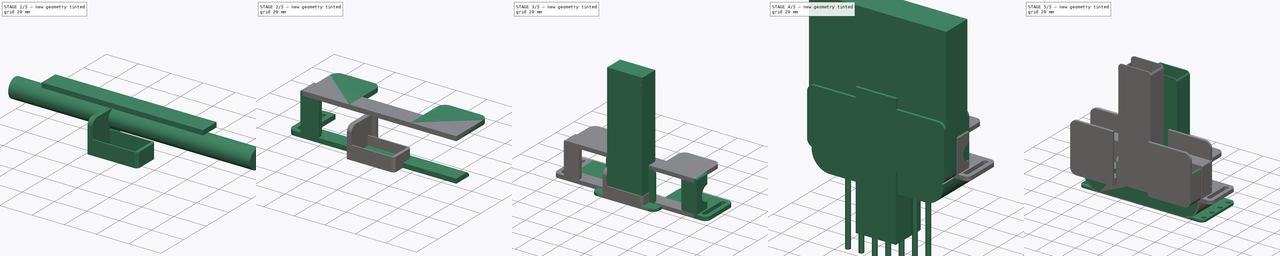
[diagram: build sequence overview — one tinted view per stage of 5, left to right]
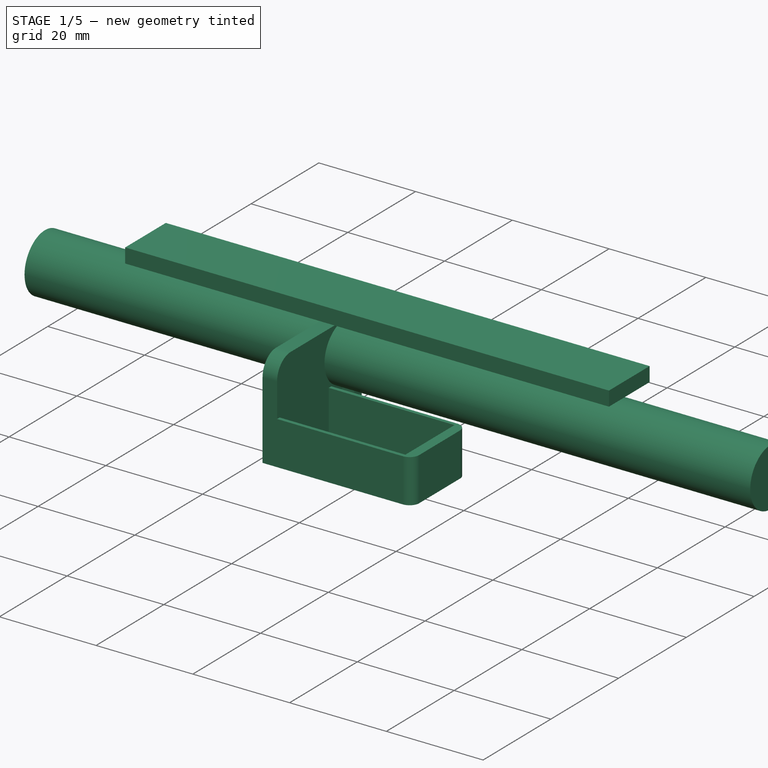
[diagram: stage 1 of 5 — iso view after this stage's code; geometry added in this stage tinted green]
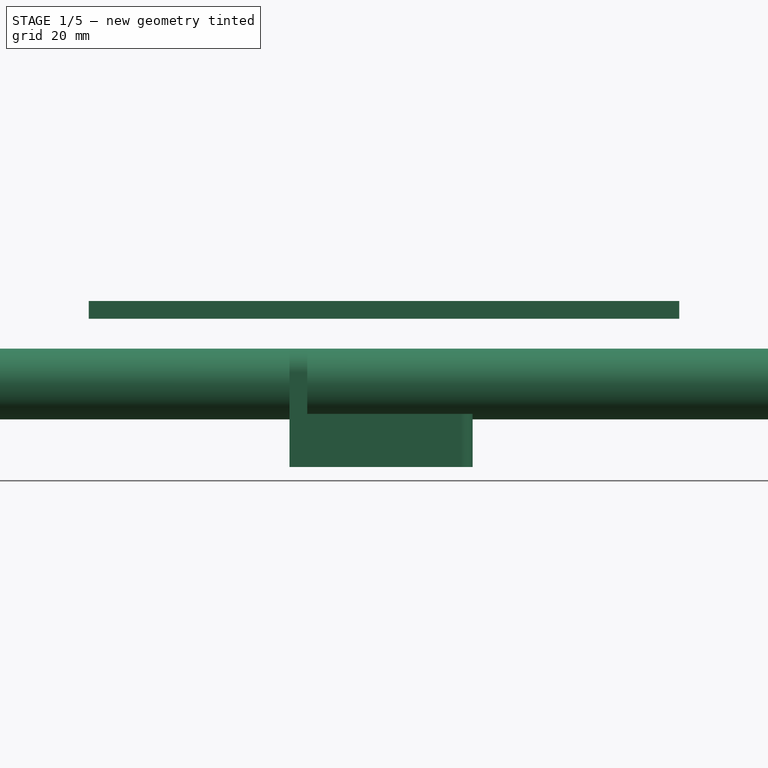
[diagram: stage 1 of 5 — front view after this stage's code; geometry added in this stage tinted green]
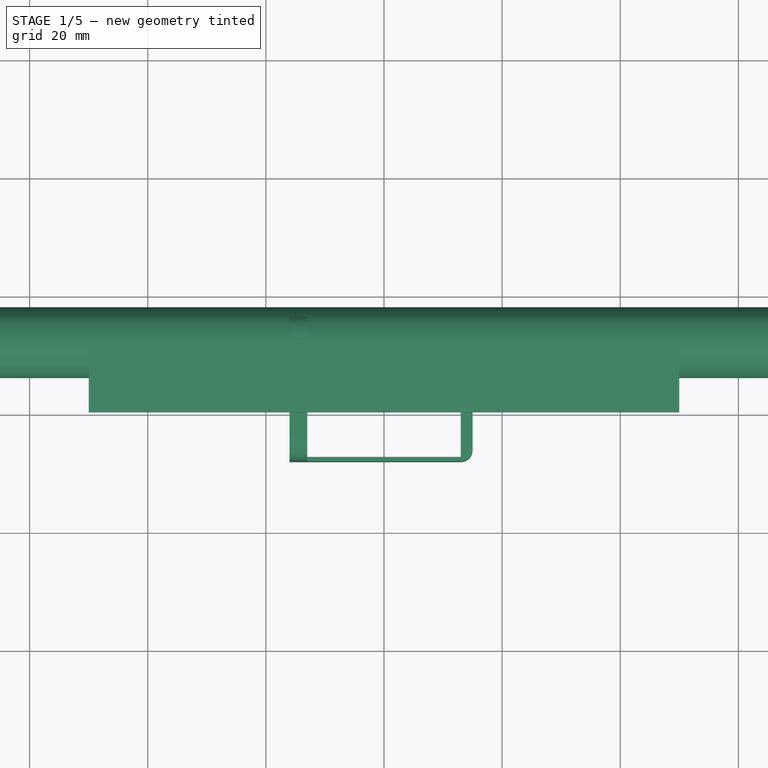
[diagram: stage 1 of 5 — top view after this stage's code; geometry added in this stage tinted green]
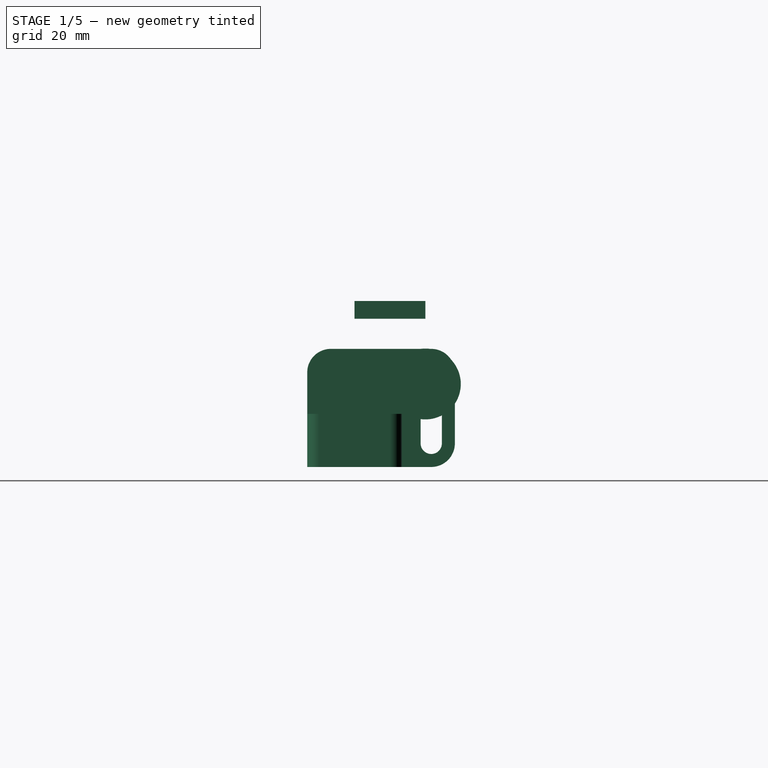
[diagram: stage 1 of 5 — right view after this stage's code; geometry added in this stage tinted green]
FCSTD DOCUMENT  (FreeCAD 0.20R29410 (Git))
Label: wintel_holder
License: All rights reserved
LicenseURL: http://en.wikipedia.org/wiki/All_rights_reserved
objects: Part::Box×25, Part::MultiFuse×16, Part::Fillet×13, Part::Cut×10, Part::Cylinder×9, Part::Mirroring×6, Part::Extrusion×5, Part::FeaturePython×5, Sketcher::SketchObject×4, Part::Compound×3, Part::Chamfer×2, Spreadsheet::Sheet×1, PartDesign::FeatureBase×1, PartDesign::Body×1
note: 95 computed .brp shape members not serialized (recipe doc carries the construction recipe); baked Part::Feature solids carry a one-line shape summary decoded from their .brp

FEATURE [Part::Box] Box013  label="flat holder cube"
  AttacherType = Attacher::AttachEngine3D
  Height = 3
  Length = 100
  Placement = pos=(-50,0,25.1) rot=(0,0,1;0rad)
  Width = 12
  expr: .Placement.Base.x = -Length / 2
  expr: .Placement.Base.z = <<corner cube>>.Height
  expr: Height = <<p>>.thick_wall
  expr: Length = round(<<p>>.wintel_height / 10) * 10
  expr: Width = 10mm + <<p>>.wall
FEATURE [Part::Box] Box014  label="corner cube"
  AttacherType = Attacher::AttachEngine3D
  Height = 25.1
  Length = 10
  Width = 3
  expr: Height = <<p>>.wintel_width - 0.5mm + <<bottom flat holder cube>>.Height
  expr: Length = <<p>>.corner_length
  expr: Width = <<p>>.thick_wall
FEATURE [Part::Box] Box015  label="other corner cube"
  AttacherType = Attacher::AttachEngine3D
  Height = 28.1
  Length = 3
  Placement = pos=(-2,0,0) rot=(0,0,1;0rad)
  Width = 12
  expr: .Placement.Base.x = -<<p>>.wall
  expr: Height = <<corner cube>>.Height + <<p>>.thick_wall
  expr: Length = <<p>>.thick_wall
  expr: Width = <<p>>.wall + 10mm
FEATURE [Part::Box] Box018  label="bottom flat holder cube"
  AttacherType = Attacher::AttachEngine3D
  Height = 3
  Length = 100
  Placement = pos=(-50,0,0) rot=(0,0,1;0rad)
  Width = 12
  expr: .Placement.Base.x = -Length / 2
  expr: Height = <<p>>.thick_wall
  expr: Length = round(<<p>>.wintel_height / 10) * 10
  expr: Width = 10mm + <<p>>.wall
FEATURE [Part::Cylinder] Cylinder008  label="Cylinder"
  Angle = 360
  AttacherType = Attacher::AttachEngine3D
  FirstAngle = 0
  Height = 150
  Placement = pos=(-75,12,14.05) rot=(0,1,0;1.5708rad)
  Radius = 6
  SecondAngle = 0
  expr: .Placement.Base.x = -Height / 2
  expr: .Placement.Base.y = <<other corner cube>>.Width
  expr: .Placement.Base.z = <<other corner cube>>.Height / 2
FEATURE [Part::Box] Box020  label="Cube"
  AttacherType = Attacher::AttachEngine3D
  Height = 9
  Length = 30
  Placement = pos=(-15,-8,0) rot=(0,0,1;0rad)
  Width = 16
  expr: .Placement.Base.x = -Length / 2
  expr: .Placement.Base.y = -Width / 2
FEATURE [Part::Box] Box021  label="Cube001"
  AttacherType = Attacher::AttachEngine3D
  Height = 10
  Length = 26
  Placement = pos=(-13,-7.25,2) rot=(0,0,1;0rad)
  Width = 14.5
  expr: .Placement.Base.x = -Length / 2
  expr: .Placement.Base.y = -Width / 2
FEATURE [Part::Box] Box022  label="Cube002"
  AttacherType = Attacher::AttachEngine3D
  Height = 20
  Length = 3
  Placement = pos=(-16,-8,0) rot=(0,0,1;0rad)
  Width = 25
  expr: .Placement.Base.x = -<<Cube001>>.Length / 2 - Length
  expr: .Placement.Base.y = -<<Cube>>.Width / 2
  expr: Length = <<p>>.thick_wall
FEATURE [Part::Fillet] Fillet011
  Base = -> Box022
  Edges = 3 edges r=4: [Edge10,Edge11,Edge12]
FEATURE [Part::Box] Box023  label="m3 hole cube001"
  AttacherType = Attacher::AttachEngine3D
  Height = 10
  Length = 3.6
  Placement = pos=(-1.8,-6,0) rot=(0,0,1;0rad)
  Width = 12
  expr: .Placement.Base.x = -Length / 2
  expr: .Placement.Base.y = -Width / 2
  expr: Length = 2 * <<p>>.m3_r
  expr: Width = abs(<<m3 hole001>>.Placement.Base.y) * 2
FEATURE [Part::Cylinder] Cylinder009  label="m3 hole001"
  Angle = 360
  AttacherType = Attacher::AttachEngine3D
  FirstAngle = 0
  Height = 10
  Placement = pos=(0,-6,0) rot=(0,0,1;0rad)
  Radius = 1.8
  SecondAngle = 0
  expr: Radius = <<p>>.m3_r
FEATURE [Part::Mirroring] Part__Mirroring005  label="m3 hole (Mirror #3)001"
  Base = (0,0,0)
  Normal = (0,1,0)
  Source = -> Cylinder009
FEATURE [Part::MultiFuse] Fusion015  label="widen bolt hole fusion001"
  Placement = pos=(-7,13,10) rot=(0.57735,-0.57735,-0.57735;2.0944rad)
  Shapes = -> [Box023,Part__Mirroring005,Cylinder009]
FEATURE [Part::Fillet] Fillet012
  Base = -> Box020
  Edges = 2 edges r=2: [Edge5,Edge7]
FEATURE [Part::Cut] Cut007
  Base = -> Fillet012
  Tool = -> Box021
FEATURE [Part::MultiFuse] Fusion016
  Shapes = -> [Cut007,Fillet011]
FEATURE [Part::Cut] Cut008  label="usb side holder cut"
  Base = -> Fusion016
  Tool = -> Fusion015
FEATURE [Part::Box] Box024  label="Cube003"
  AttacherType = Attacher::AttachEngine3D
  Height = 10
  Length = 26
  Placement = pos=(-13,-7.25,0) rot=(0,0,1;0rad)
  Width = 14.5
  expr: .Placement.Base.x = -Length / 2
  expr: .Placement.Base.y = -Width / 2
FEATURE [Part::Cut] Cut009  label="usb side holder open cut"
  Base = -> Cut008
  Tool = -> Box024
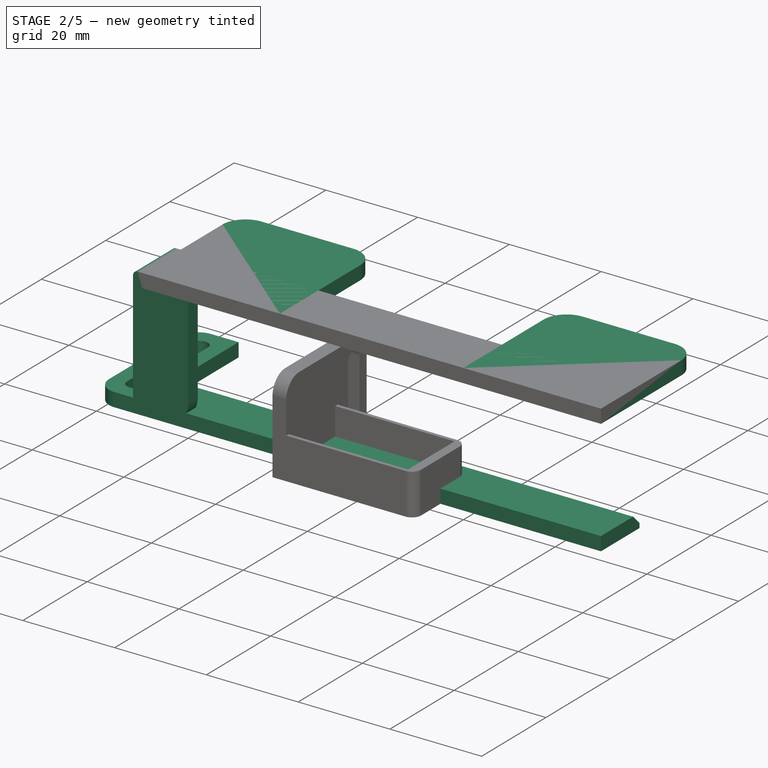
[diagram: stage 2 of 5 — iso view after this stage's code; geometry added in this stage tinted green]
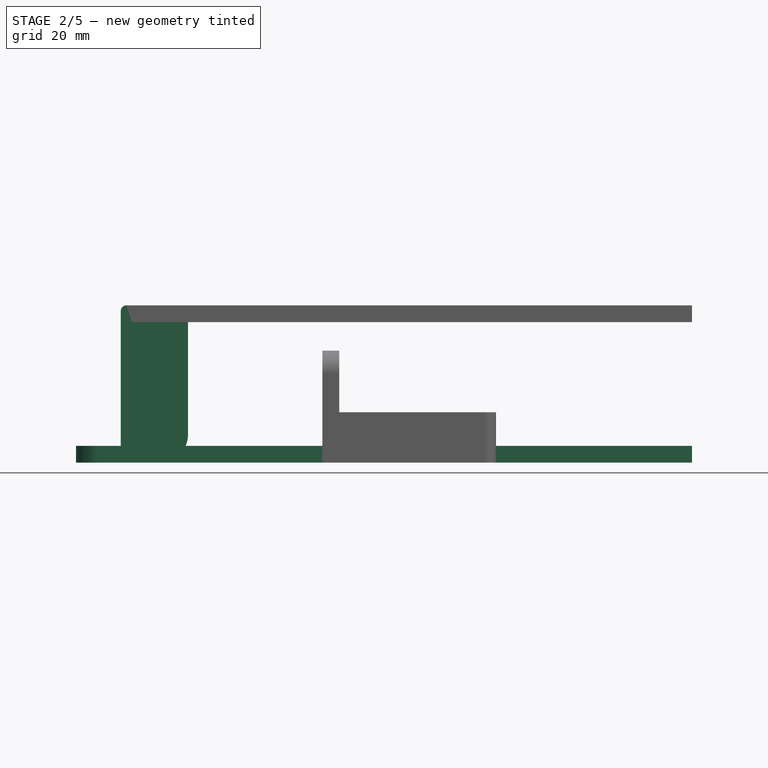
[diagram: stage 2 of 5 — front view after this stage's code; geometry added in this stage tinted green]
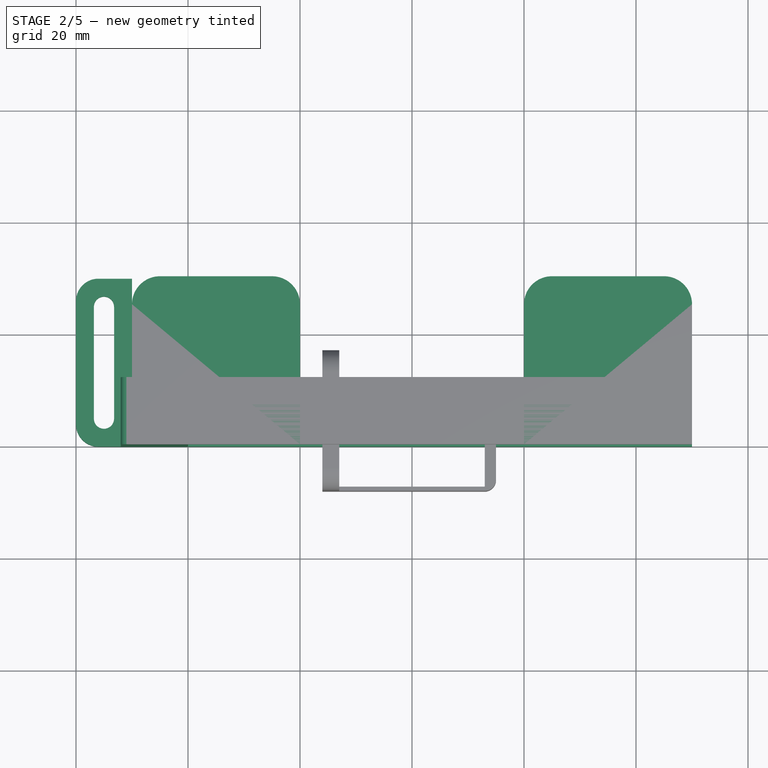
[diagram: stage 2 of 5 — top view after this stage's code; geometry added in this stage tinted green]
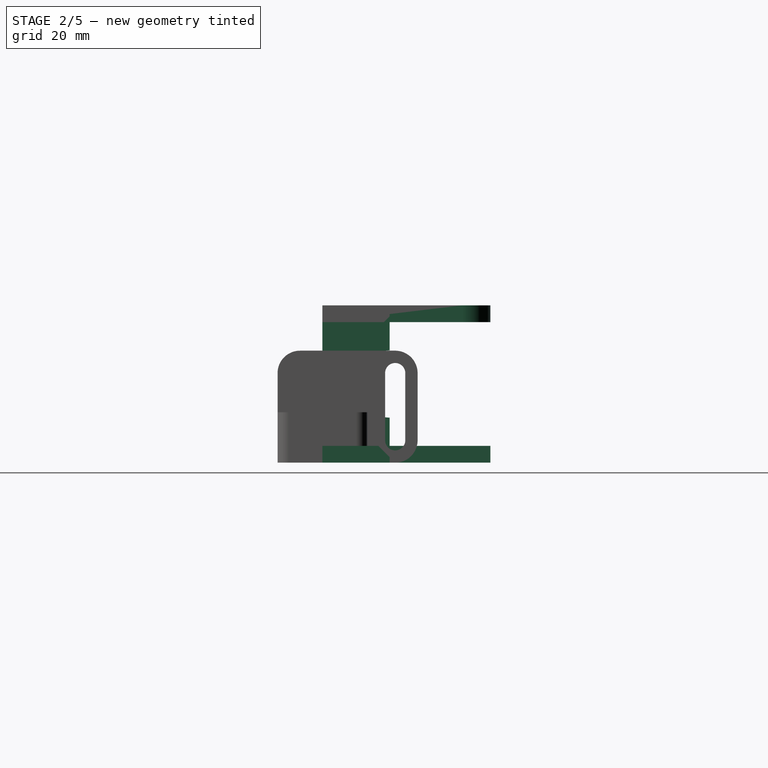
[diagram: stage 2 of 5 — right view after this stage's code; geometry added in this stage tinted green]
FEATURE [Part::Box] Box016  label="cornet attachment cube"
  AttacherType = Attacher::AttachEngine3D
  Height = 3
  Length = 10
  Placement = pos=(-10,0,0) rot=(0,0,1;0rad)
  Width = 30
  expr: .Placement.Base.x = -Length
  expr: Height = <<p>>.thick_wall
  expr: Width = <<bottom flat cube>>.Width
FEATURE [Part::Fillet] Fillet006  label="cornet attachment cube fillet"
  Base = -> Box016
  Edges = 2 edges r=4: [Edge1,Edge3]
FEATURE [Part::Fillet] Fillet007  label="corner cube fillet"
  Base = -> Box014
  Edges = 1 edges r=5: [Edge8]
FEATURE [Part::Cylinder] Cylinder007  label="m3 hole"
  Angle = 360
  AttacherType = Attacher::AttachEngine3D
  FirstAngle = 0
  Height = 10
  Placement = pos=(0,-10,0) rot=(0,0,1;0rad)
  Radius = 1.8
  SecondAngle = 0
  expr: Radius = <<p>>.m3_r
FEATURE [Part::Box] Box017  label="m3 hole cube"
  AttacherType = Attacher::AttachEngine3D
  Height = 10
  Length = 3.6
  Placement = pos=(-1.8,-10,0) rot=(0,0,1;0rad)
  Width = 20
  expr: .Placement.Base.x = -Length / 2
  expr: .Placement.Base.y = -Width / 2
  expr: Length = 2 * <<p>>.m3_r
  expr: Width = abs(<<m3 hole>>.Placement.Base.y) * 2
FEATURE [Part::Mirroring] Part__Mirroring002  label="m3 hole (Mirror #3)"
  Base = (0,0,0)
  Normal = (0,1,0)
  Source = -> Cylinder007
FEATURE [Part::MultiFuse] Fusion010  label="widen bolt hole fusion"
  Placement = pos=(-5,15,0) rot=(0,0,1;0rad)
  Shapes = -> [Box017,Part__Mirroring002,Cylinder007]
  expr: .Placement.Base.x = -5mm
  expr: .Placement.Base.y = <<cornet attachment cube>>.Width / 2
FEATURE [Part::Chamfer] Chamfer  label="bottom flat holder chamfer"
  Base = -> Box018
  Edges = 1 edges r=2: [Edge12]
FEATURE [Part::Chamfer] Chamfer001  label="flat holder cube chamfer"
  Base = -> Box013
  Edges = 1 edges r=1: [Edge11]
FEATURE [Part::Fillet] Fillet008  label="other corner cube fillet"
  Base = -> Box015
  Edges = 1 edges r=1: [Edge2]
FEATURE [Part::MultiFuse] Fusion011  label="cornet set fusion"
  Shapes = -> [Fillet006,Fillet007,Fillet008]
FEATURE [Part::Box] Box019  label="bottom flat cube"
  AttacherType = Attacher::AttachEngine3D
  Height = 3
  Length = 30
  Placement = pos=(-50,0,0) rot=(0,0,1;0rad)
  Width = 30
  expr: .Placement.Base.x = -<<flat holder cube>>.Length / 2
  expr: Height = <<p>>.thick_wall
FEATURE [Part::Fillet] Fillet009  label="bottom flat fillet"
  Base = -> Box019
  Edges = 1 edges r=5: [Edge7]
FEATURE [Part::Mirroring] Part__Mirroring003  label="bottom flat fillet (Mirror #4)"
  Base = (0,0,0)
  Normal = (1,0,0)
  Source = -> Fillet009
FEATURE [Part::MultiFuse] Fusion013  label="bottom flat fusion"
  Shapes = -> [Part__Mirroring003,Fillet009]
FEATURE [Part::Mirroring] Part__Mirroring004  label="bottom flat fusion (Mirror #5)"
  Base = (0,0,14.05)
  Normal = (0,0,1)
  Source = -> Fusion013
  expr: .Base.z = (<<p>>.wintel_width + <<p>>.thick_wall - 0.5mm + <<p>>.thick_wall) / 2
FEATURE [Part::Fillet] Fillet010  label="bottom flat fusion (Mirror #5) fillet"
  Base = -> Part__Mirroring004
  Edges = 2 edges r=5: [Edge15,Edge30]
FEATURE [Part::MultiFuse] Fusion014  label="extract fusion"
  Shapes = -> [Fusion010,Cylinder008]
FEATURE [Part::Cut] Cut006  label="cornet set cut"
  Base = -> Fusion011
  Placement = pos=(-50,0,0) rot=(0,0,1;0rad)
  Tool = -> Fusion014
  expr: .Placement.Base.x = -<<flat holder cube>>.Length / 2
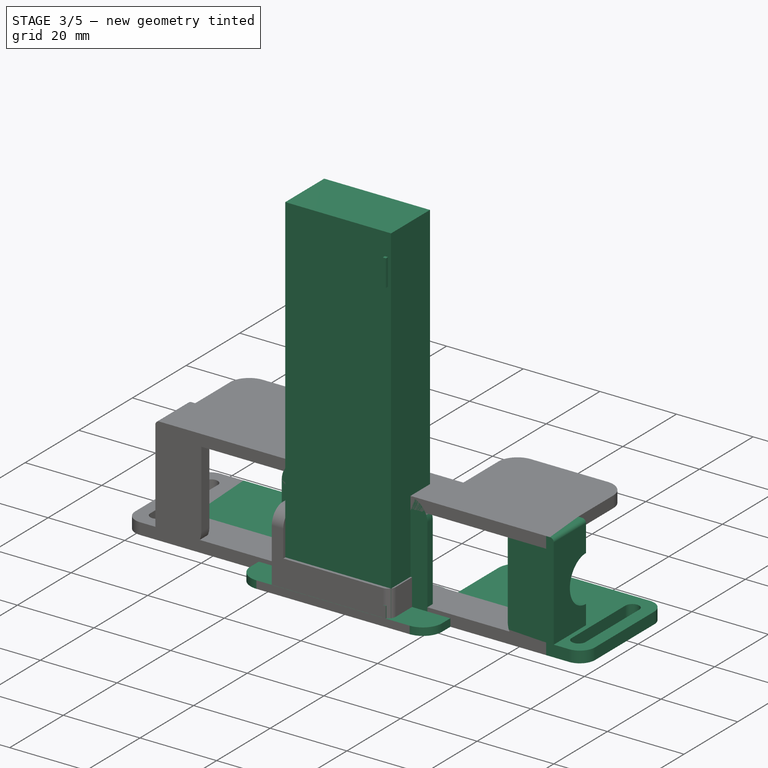
[diagram: stage 3 of 5 — iso view after this stage's code; geometry added in this stage tinted green]
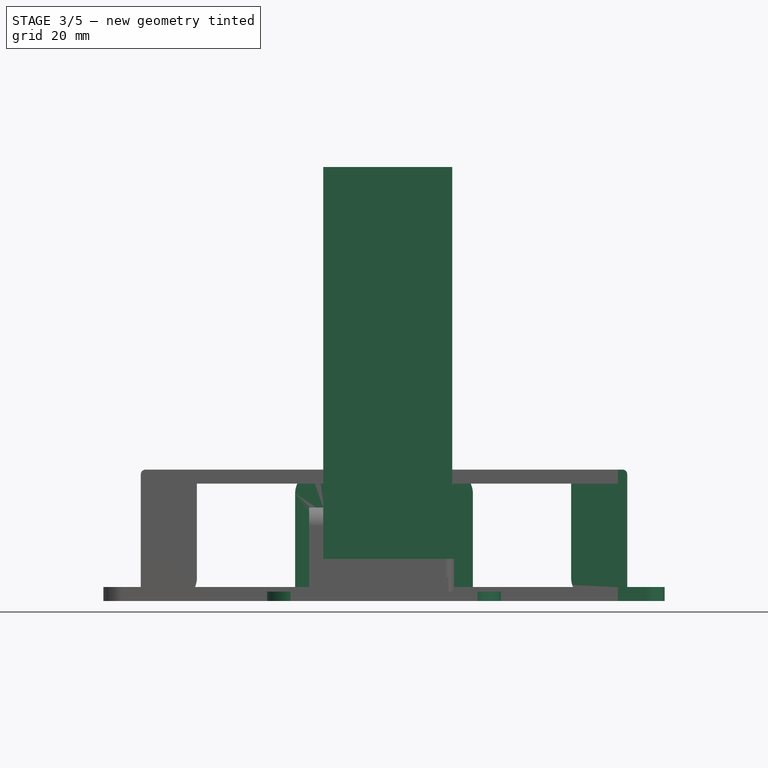
[diagram: stage 3 of 5 — front view after this stage's code; geometry added in this stage tinted green]
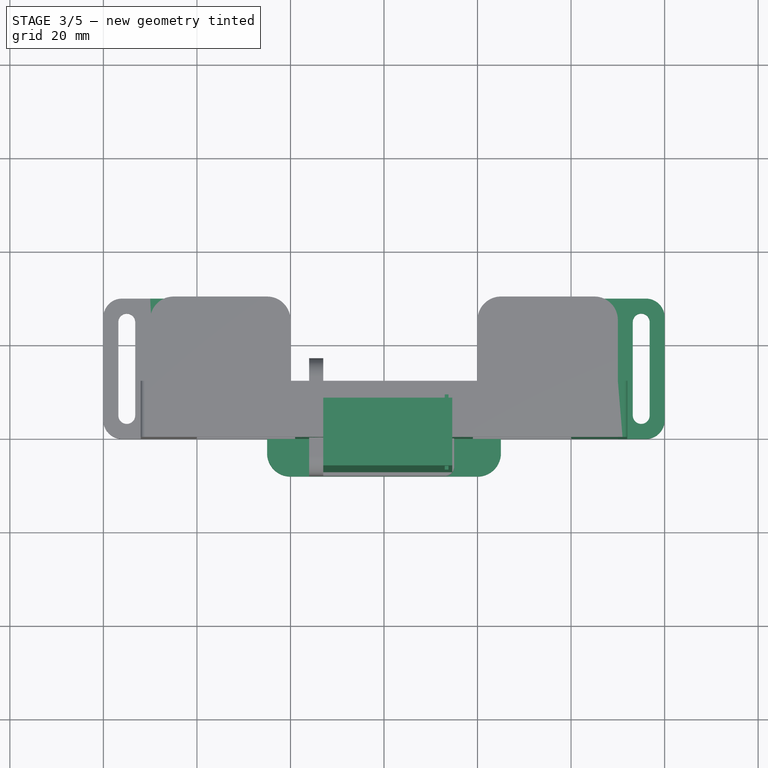
[diagram: stage 3 of 5 — top view after this stage's code; geometry added in this stage tinted green]
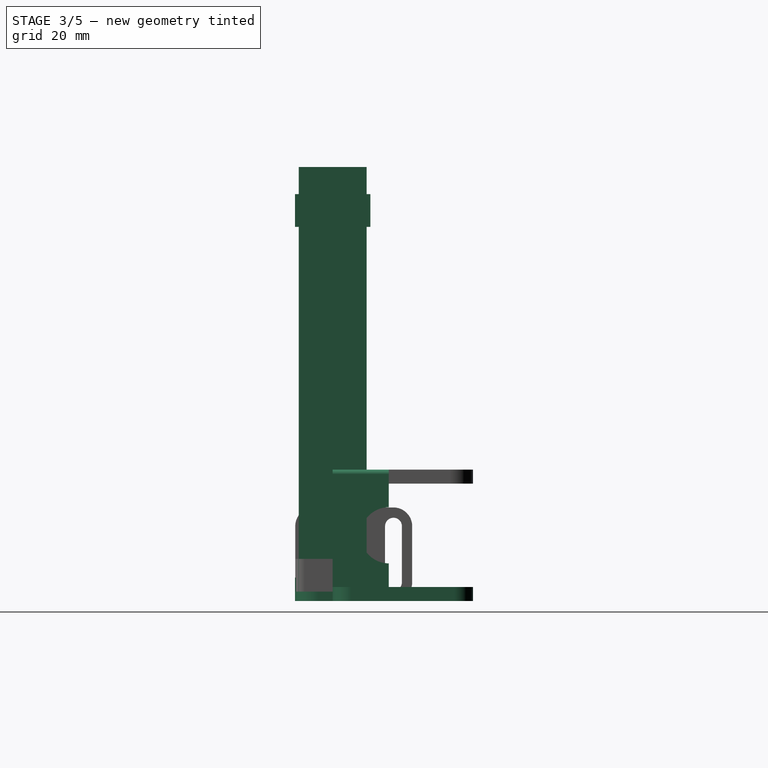
[diagram: stage 3 of 5 — right view after this stage's code; geometry added in this stage tinted green]
FEATURE [Part::Box] Box  label="usb outer cube"
  AttacherType = Attacher::AttachEngine3D
  Height = 92
  Length = 27.6
  Placement = pos=(-13.8,-8.05,0) rot=(0,0,1;0rad)
  Width = 16.1
  expr: .Placement.Base.x = -Length / 2
  expr: .Placement.Base.y = -Width / 2
  expr: Length = 26mm + 2 * <<bottom sketch>>.Constraints.wall
  expr: Width = 14.5mm + 2 * <<bottom sketch>>.Constraints.wall
FEATURE [Part::Box] Box002  label="usb inner cube"
  AttacherType = Attacher::AttachEngine3D
  Height = 92
  Length = 27.6
  Placement = pos=(-13,-7.25,0.8) rot=(0,0,1;0rad)
  Width = 14.5
  expr: .Placement.Base.x = -Length / 2 + <<bottom sketch>>.Constraints.wall
  expr: .Placement.Base.y = -Width / 2
  expr: .Placement.Base.z = <<bottom sketch>>.Constraints.wall
  expr: Height = <<usb outer cube>>.Height
  expr: Length = <<usb outer cube>>.Length
  expr: Width = <<usb outer cube>>.Width - 2 * <<bottom sketch>>.Constraints.wall
FEATURE [Part::Box] Box003  label="usb bottom wall cube"
  AttacherType = Attacher::AttachEngine3D
  Height = 5
  Length = 0.8
  Placement = pos=(13,-8.05,0) rot=(0,0,1;0rad)
  Width = 16.1
  expr: .Placement.Base.x = <<usb outer cube>>.Length / 2 - Length
  expr: .Placement.Base.y = -Width / 2
  expr: Length = <<bottom sketch>>.Constraints.wall
  expr: Width = <<usb outer cube>>.Width
FEATURE [Part::Box] Box004  label="usb top wall cube"
  AttacherType = Attacher::AttachEngine3D
  Height = 7
  Length = 0.8
  Placement = pos=(13,-8.05,80) rot=(0,0,1;0rad)
  Width = 16.1
  expr: .Placement.Base.x = <<usb outer cube>>.Length / 2 - Length
  expr: .Placement.Base.y = -Width / 2
  expr: Length = <<bottom sketch>>.Constraints.wall
  expr: Width = <<usb outer cube>>.Width
FEATURE [Part::Box] Box010  label="usb holder attachment cube"
  AttacherType = Attacher::AttachEngine3D
  Height = 2
  Length = 50
  Placement = pos=(-25,-8.05,0) rot=(0,0,1;0rad)
  Width = 16.1
  expr: .Placement.Base.x = -Length / 2
  expr: .Placement.Base.y = -Width / 2
  expr: Height = <<p>>.wall
  expr: Width = <<usb outer cube>>.Width
FEATURE [Part::Fillet] Fillet003  label="usb holder attachment cube fillet"
  Base = -> Box010
  Edges = 4 edges r=5: [Edge1,Edge3,Edge5,Edge7]
FEATURE [Part::Box] Box011  label="vertical camera holder wall cube"
  AttacherType = Attacher::AttachEngine3D
  Height = 28
  Length = 38
  Placement = pos=(-19,0,0) rot=(0,0,1;0rad)
  Width = 2
  expr: .Placement.Base.x = -Length / 2
  expr: Width = <<p>>.wall
FEATURE [Part::Fillet] Fillet004  label="vertical camera holder wall cube fillet"
  Base = -> Box011
  Edges = 2 edges r=5: [Edge2,Edge6]
FEATURE [Part::Box] Box012  label="horizontal camera holder wall cube"
  AttacherType = Attacher::AttachEngine3D
  Height = 2
  Length = 38
  Placement = pos=(-19,2,0) rot=(0,0,1;0rad)
  Width = 10
  expr: .Placement.Base.x = -Length / 2
  expr: .Placement.Base.y = <<p>>.wall
  expr: Height = <<p>>.wall
  expr: Length = <<vertical camera holder wall cube>>.Length
FEATURE [Part::Fillet] Fillet005  label="horizontal camera holder wall cube fillet"
  Base = -> Box012
  Edges = 2 edges r=5: [Edge3,Edge7]
FEATURE [Part::MultiFuse] Fusion007  label="camera holder fusion"
  Shapes = -> [Fillet004,Fillet005]
FEATURE [Part::Cylinder] Cylinder005  label="bolt hole004"
  Angle = 360
  AttacherType = Attacher::AttachEngine3D
  FirstAngle = 0
  Height = 10
  Radius = 1.8
  SecondAngle = 0
FEATURE [Part::FeaturePython] Array003  label="bolt hole array003"  # Draft array (typed FeaturePython)
  AlwaysSyncPlacement = false
  Angle = 360
  ArrayType = 0
  Axis = (0,0,1)
  Base = -> Cylinder005
  Center = (0,0,0)
  Count = 3
  ExpandArray = false
  Fuse = false
  IntervalAxis = (0,0,0)
  IntervalX = (10,0,0)
  IntervalY = (0,100,0)
  IntervalZ = (0,0,100)
  NumberCircles = 3
  NumberPolar = 5
  NumberX = 3
  NumberY = 1
  NumberZ = 1
  Placement = pos=(-10,7,0) rot=(0,0,1;0rad)
  PlacementList = 3 placements: arithmetic series from (0,0,0) step (10,0,0) to (20,0,0)
  RadialDistance = 50
  ScaleList = (3) [(1,1,1),(1,1,1),(1,1,1)]
  Symmetry = 1
  TangentialDistance = 25
  expr: .Placement.Base.x = -.IntervalX.x * (NumberX - 1) / 2
  expr: .Placement.Base.y = <<p>>.wall + <<horizontal camera holder wall cube>>.Width / 2
FEATURE [Part::Cylinder] Cylinder006  label="bolt hole005"
  Angle = 360
  AttacherType = Attacher::AttachEngine3D
  FirstAngle = 0
  Height = 10
  Placement = pos=(0,0,0) rot=(-1,0,0;1.5708rad)
  Radius = 2
  SecondAngle = 0
FEATURE [Part::FeaturePython] Array004  # Draft array (typed FeaturePython)
  AlwaysSyncPlacement = false
  Angle = 360
  ArrayType = 0
  Axis = (0,0,1)
  Base = -> Cylinder006
  Center = (0,0,0)
  Count = 2
  ExpandArray = false
  Fuse = false
  IntervalAxis = (0,0,0)
  IntervalX = (24,0,0)
  IntervalY = (0,100,0)
  IntervalZ = (0,0,100)
  NumberCircles = 3
  NumberPolar = 5
  NumberX = 2
  NumberY = 1
  NumberZ = 1
  Placement = pos=(-12,0,17) rot=(0,0,1;0rad)
  PlacementList = 2 placements: [(0,0,0),(24,0,0)]
  RadialDistance = 50
  ScaleList = (2) [(1,1,1),(1,1,1)]
  Symmetry = 1
  TangentialDistance = 25
  expr: .Placement.Base.x = -.IntervalX.x * (NumberX - 1) / 2
FEATURE [Part::MultiFuse] Fusion008  label="camera holder extract fusion"
  Shapes = -> [Array003,Array004]
FEATURE [Part::Cut] Cut005  label="camera holder cut"
  Base = -> Fusion007
  Tool = -> Fusion008
FEATURE [Part::Mirroring] Part__Mirroring001  label="cornet set cut (Mirror #2)"
  Base = (0,0,0)
  Normal = (1,0,0)
  Source = -> Cut006
FEATURE [Part::MultiFuse] Fusion012  label="flat holder fusion"
  Shapes = -> [Part__Mirroring001,Cut006,Chamfer001,Chamfer,Fusion013,Fillet010]
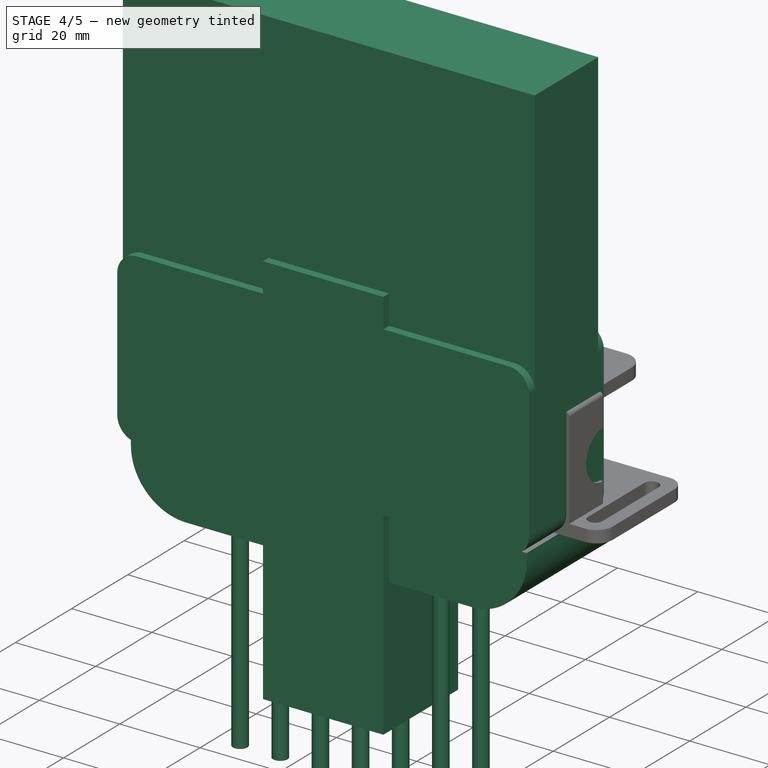
[diagram: stage 4 of 5 — iso view after this stage's code; geometry added in this stage tinted green]
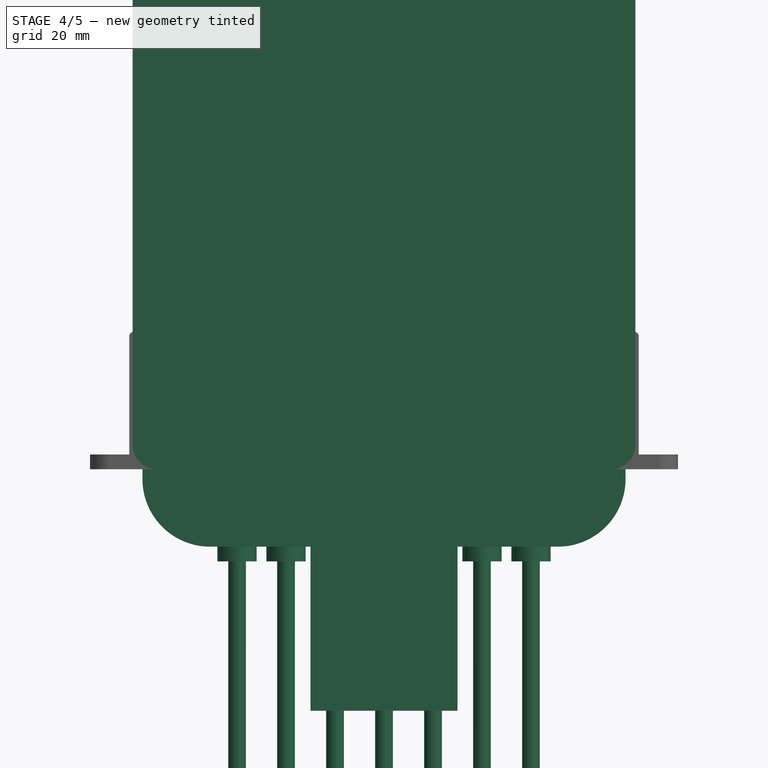
[diagram: stage 4 of 5 — front view after this stage's code; geometry added in this stage tinted green]
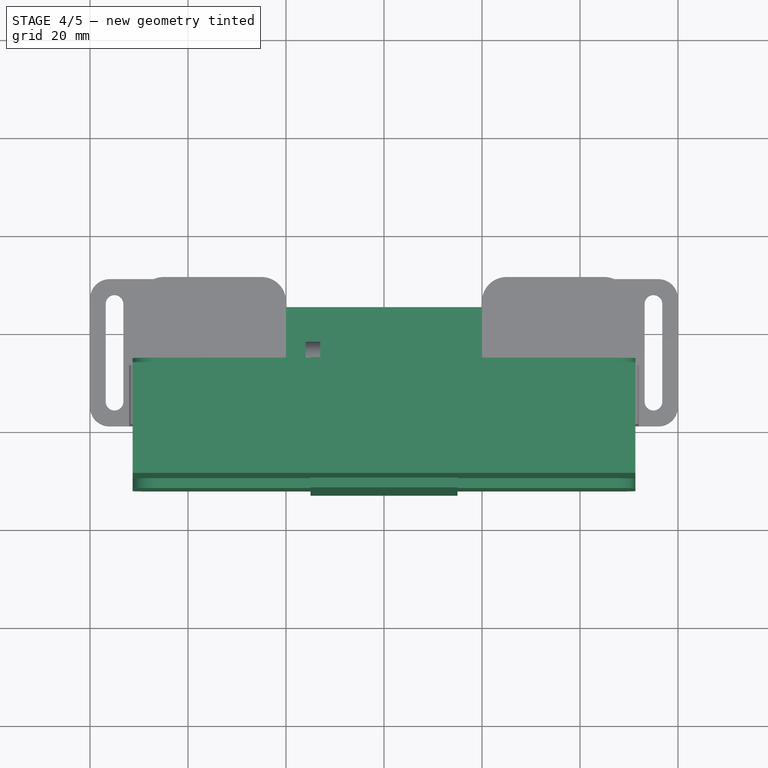
[diagram: stage 4 of 5 — top view after this stage's code; geometry added in this stage tinted green]
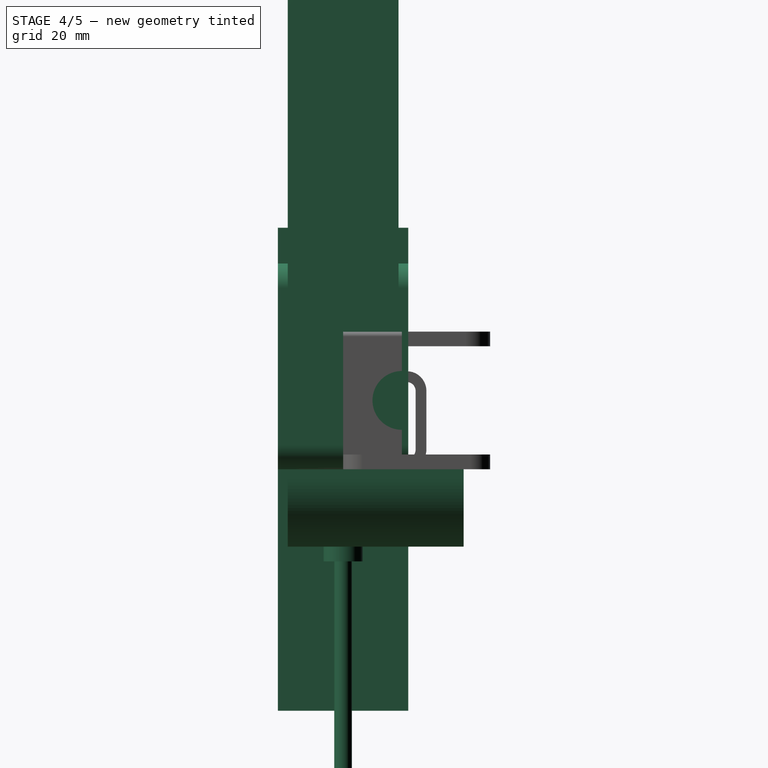
[diagram: stage 4 of 5 — right view after this stage's code; geometry added in this stage tinted green]
FEATURE [Sketcher::SketchObject] Sketch  label="bottom sketch"
  FullyConstrained = true
  Placement = pos=(0,0,0) rot=(1,0,0;1.5708rad)
  sketch-geometry (12):
    g0: LineSegment StartX=-35.5 StartY=-15.8 StartZ=0 EndX=35.5 EndY=-15.8 EndZ=0
    g1: LineSegment StartX=-35.5 StartY=-15 StartZ=0 EndX=35.5 EndY=-15 EndZ=0
    g2: ArcOfCircle CenterX=-35.5 CenterY=-2 CenterZ=0 NormalX=0 NormalY=0 NormalZ=1 AngleXU=0 Radius=13 StartAngle=3.14159 EndAngle=4.71239
    g3: ArcOfCircle CenterX=-35.5 CenterY=-2 CenterZ=0 NormalX=0 NormalY=0 NormalZ=1 AngleXU=0 Radius=13.8 StartAngle=3.14159 EndAngle=4.71239
    g4: ArcOfCircle CenterX=35.5 CenterY=-2 CenterZ=0 NormalX=0 NormalY=0 NormalZ=1 AngleXU=0 Radius=13 StartAngle=4.71239 EndAngle=6.28319
    g5: ArcOfCircle CenterX=35.5 CenterY=-2 CenterZ=0 NormalX=0 NormalY=0 NormalZ=1 AngleXU=0 Radius=13.8 StartAngle=4.71239 EndAngle=6.28319
    g6: LineSegment StartX=-48.5 StartY=0 StartZ=0 EndX=-48.5 EndY=-2 EndZ=0
    g7: LineSegment StartX=48.5 StartY=-2 StartZ=0 EndX=48.5 EndY=0 EndZ=0
    g8: LineSegment StartX=49.3 StartY=-2 StartZ=0 EndX=49.3 EndY=0 EndZ=0
    g9: LineSegment StartX=-49.3 StartY=-2 StartZ=0 EndX=-49.3 EndY=0 EndZ=0
    g10: LineSegment StartX=-49.3 StartY=0 StartZ=0 EndX=-48.5 EndY=0 EndZ=0
    g11: LineSegment StartX=48.5 StartY=0 StartZ=0 EndX=49.3 EndY=0 EndZ=0
  constraints (35):
    c: Coincident(g3,g2)
    c: Coincident(g5,g4)
    c: DistanceX(g1,g1) = 71  'internal_bottom_length'
    c: DistanceX(g3,g2) = 0.8  'wall'
    c: DistanceX(g0,g0) = 71  'bottom_border_size'
    c: Radius(g3) = 13.8  'border_radius'
    c: DistanceY(g0,g2) = 13.8  'border_height'
    c: DistanceX(g2,g4) = 97
    c: Coincident(g2,g1)
    c: Tangent(g1,g4) = -1.5708
    c: Tangent(g0,g5) = -1.5708
    c: Symmetric(g1,g1,g-2)
    c: Symmetric(g0,g0,g-2)
    c: Tangent(g3,g0) = -1.5708
    c: DistanceX(g3,g5) = 98.6  'top_length'
    c: PointOnObject(g6,g-1)
    c: Vertical(g6)
    c: PointOnObject(g7,g-1)
    c: PointOnObject(g8,g-1)
    c: Vertical(g8)
    c: PointOnObject(g9,g-1)
    c: Coincident(g10,g9)
    c: Coincident(g10,g6)
    c: Vertical(g9)
    c: Coincident(g4,g7)
    c: Vertical(g7)
    c: Coincident(g11,g7)
    c: Coincident(g11,g8)
    c: Tangent(g9,g3) = 1.5708
    c: Tangent(g8,g5) = -1.5708
    c: Equal(g9,g8)
    c: Equal(g7,g6)
    c: Tangent(g2,g6) = -1.5708
    c: DistanceY(g9,g9) = 2  'top_vertical_line'
    c: DistanceY(g0,g-1) = 15.8  'below_center'
FEATURE [Part::Extrusion] Extrude  label="bottom extrude"
  Base = -> Sketch
  Dir = (0,-1,2e-16)
  DirMode = 2
  FaceMakerClass = Part::FaceMakerBullseye
  LengthFwd = 24.6
  LengthRev = 0
  Reversed = true
  Solid = true
  Symmetric = false
  expr: LengthFwd = 23mm + 2 * <<bottom sketch>>.Constraints.wall
FEATURE [Part::Fillet] Fillet001  label="usb outer cube fillet"
  Base = -> Box
  Edges = 2 edges r=3: [Edge2,Edge6]
FEATURE [Part::Cut] Cut002  label="usb holder cut"
  Base = -> Fillet001
  Tool = -> Box002
FEATURE [Part::MultiFuse] Fusion001  label="usb holder fusion"
  Shapes = -> [Cut002,Box003,Box004]
FEATURE [Part::Compound] Compound  label="usb holder compound"
  Links = -> [Fusion001]
  Placement = pos=(0,0,1.2) rot=(0,0,1;3.14159rad)
  expr: .Placement.Base.z = <<p>>.wall - <<usb bottom wall cube>>.Length
FEATURE [Sketcher::SketchObject] Sketch003  label="bottom under sketch"
  FullyConstrained = false
  Placement = pos=(0,0,0) rot=(1,0,0;1.5708rad)
  sketch-geometry (6):
    g0: LineSegment StartX=-35.5 StartY=-15.8 StartZ=0 EndX=35.5 EndY=-15.8 EndZ=0
    g1: ArcOfCircle CenterX=-35.5 CenterY=-2 CenterZ=0 NormalX=0 NormalY=0 NormalZ=1 AngleXU=0 Radius=13.8 StartAngle=3.14159 EndAngle=4.71239
    g2: ArcOfCircle CenterX=35.5 CenterY=-2 CenterZ=0 NormalX=0 NormalY=0 NormalZ=1 AngleXU=0 Radius=13.8 StartAngle=4.71239 EndAngle=6.28319
    g3: LineSegment StartX=49.3 StartY=-2 StartZ=0 EndX=49.3 EndY=0 EndZ=0
    g4: LineSegment StartX=-49.3 StartY=-2 StartZ=0 EndX=-49.3 EndY=0 EndZ=0
    g5: LineSegment StartX=-49.3 StartY=0 StartZ=0 EndX=49.3 EndY=0 EndZ=0
  constraints (17):
    c: DistanceX(g0,g0) = 71  'bottom_border_size'
    c: Radius(g1) = 13.8  'border_radius'
    c: Tangent(g0,g2) = -1.5708
    c: Symmetric(g0,g0,g-2)
    c: Tangent(g1,g0) = -1.5708
    c: DistanceX(g1,g2) = 98.6  'top_length'
    c: PointOnObject(g3,g-1)
    c: Vertical(g3)
    c: PointOnObject(g4,g-1)
    c: Vertical(g4)
    c: Tangent(g4,g1) = 1.5708
    c: Tangent(g3,g2) = -1.5708
    c: Equal(g4,g3)
    c: DistanceY(g4,g4) = 2  'top_vertical_line'
    c: DistanceY(g0,g-1) = 15.8  'below_center'
    c: Coincident(g5,g4)
    c: Coincident(g5,g3)
FEATURE [Part::Extrusion] Extrude004  label="bottom pad"
  Base = -> Sketch003
  Dir = (0,-1,2e-16)
  DirMode = 2
  FaceMakerClass = Part::FaceMakerBullseye
  LengthFwd = 22.6
  LengthRev = 0
  Solid = true
  Symmetric = true
  expr: LengthFwd = <<p>>.wintel_width
FEATURE [Part::Box] Box007  label="wintel holder outer cube"
  AttacherType = Attacher::AttachEngine3D
  Height = 42
  Length = 102.6
  Placement = pos=(-51.3,-13.3,0) rot=(0,0,1;0rad)
  Width = 26.6
  expr: .Placement.Base.x = -Length / 2
  expr: .Placement.Base.y = -Width / 2
  expr: Height = <<p>>.wintel_holder_height + <<p>>.wall
  expr: Length = <<p>>.wintel_length + 2 * <<p>>.wall
  expr: Width = <<p>>.wintel_width + 2 * <<p>>.wall
FEATURE [Part::Box] Box008  label="wintel box extract"
  AttacherType = Attacher::AttachEngine3D
  Height = 98.6
  Length = 102.6
  Placement = pos=(-51.3,-11.3,5) rot=(0,0,1;0rad)
  Width = 22.6
  expr: .Placement.Base.x = -Length / 2
  expr: .Placement.Base.y = -Width / 2
  expr: .Placement.Base.z = <<p>>.side_extract_offset_height
  expr: Height = <<p>>.wintel_height
  expr: Length = <<p>>.wintel_length + 2 * <<p>>.wall
  expr: Width = <<p>>.wintel_width
FEATURE [Part::Fillet] Fillet002  label="wintel holder outer cube fillet"
  Base = -> Box007
  Edges = 4 edges r=5: [Edge2,Edge4,Edge6,Edge8]
FEATURE [Part::Box] Box009  label="wintel split cube"
  AttacherType = Attacher::AttachEngine3D
  Height = 98.6
  Length = 30
  Placement = pos=(-15,-13.3,-49.3) rot=(0,0,1;0rad)
  Width = 26.6
  expr: .Placement.Base.x = -Length / 2
  expr: .Placement.Base.y = -Width / 2
  expr: .Placement.Base.z = -Height / 2
  expr: Height = <<p>>.wintel_height
  expr: Width = <<p>>.wintel_width + 2 * <<p>>.wall
FEATURE [Part::Cylinder] Cylinder002  label="bolt hole002"
  Angle = 360
  AttacherType = Attacher::AttachEngine3D
  FirstAngle = 0
  Height = 50
  Radius = 1.8
  SecondAngle = 0
FEATURE [Part::Cylinder] Cylinder003  label="bolt head hole"
  Angle = 360
  AttacherType = Attacher::AttachEngine3D
  FirstAngle = 0
  Height = 50
  Placement = pos=(0,0,50) rot=(0,0,1;0rad)
  Radius = 4
  SecondAngle = 0
  expr: .Placement.Base.z = <<bolt hole002>>.Height
FEATURE [Part::MultiFuse] Fusion005  label="bolt with head hole"
  Placement = pos=(-30,0,-68.8) rot=(0,0,1;0rad)
  Shapes = -> [Cylinder002,Cylinder003]
  expr: .Placement.Base.x = -<<bottom under sketch>>.Constraints.bottom_border_size / 2 + 5.5mm
  expr: .Placement.Base.z = -<<bolt head hole>>.Height - <<bottom under sketch>>.Constraints.below_center - <<p>>.bolt_head_height
FEATURE [Part::FeaturePython] Array  label="bolt hole array001"  # Draft array (typed FeaturePython)
  AlwaysSyncPlacement = false
  Angle = 360
  ArrayType = 0
  Axis = (0,0,1)
  Base = -> Fusion005
  Center = (0,0,0)
  Count = 7
  ExpandArray = false
  Fuse = false
  IntervalAxis = (0,0,0)
  IntervalX = (10,0,0)
  IntervalY = (0,100,0)
  IntervalZ = (0,0,100)
  NumberCircles = 3
  NumberPolar = 5
  NumberX = 7
  NumberY = 1
  NumberZ = 1
  PlacementList = 7 placements: arithmetic series from (-30,0,-68.8) step (10,0,0) to (30,0,-68.8)
  RadialDistance = 50
  ScaleList = (7) [(1,1,1),(1,1,1),(1,1,1),(1,1,1),(1,1,1),(1,1,1),(1,1,1)]
  Symmetry = 1
  TangentialDistance = 25
FEATURE [PartDesign::FeatureBase] Clone
  BaseFeature = -> Compound
  Placement = pos=(0,0,0) rot=(0,0,1;3.14159rad)
FEATURE [Part::Cylinder] Cylinder004  label="bolt hole003"
  Angle = 360
  AttacherType = Attacher::AttachEngine3D
  FirstAngle = 0
  Height = 10
  Radius = 1.8
  SecondAngle = 0
FEATURE [Part::FeaturePython] Array002  label="bolt hole array002"  # Draft array (typed FeaturePython)
  AlwaysSyncPlacement = false
  Angle = 360
  ArrayType = 0
  Axis = (0,0,1)
  Base = -> Cylinder004
  Center = (0,0,0)
  Count = 5
  ExpandArray = false
  Fuse = false
  IntervalAxis = (0,0,0)
  IntervalX = (10,0,0)
  IntervalY = (0,100,0)
  IntervalZ = (0,0,100)
  NumberCircles = 3
  NumberPolar = 5
  NumberX = 5
  NumberY = 1
  NumberZ = 1
  Placement = pos=(-20,0,0) rot=(0,0,1;0rad)
  PlacementList = 5 placements: arithmetic series from (0,0,0) step (10,0,0) to (40,0,0)
  RadialDistance = 50
  ScaleList = (5) [(1,1,1),(1,1,1),(1,1,1),(1,1,1),(1,1,1)]
  Symmetry = 1
  TangentialDistance = 25
  expr: .Placement.Base.x = -.IntervalX.x * (NumberX - 1) / 2
FEATURE [Part::MultiFuse] Fusion006  label="usb holder fusion001"
  Shapes = -> [Fillet003,Compound]
FEATURE [Part::Cut] Cut004  label="usb holder cut001"
  Base = -> Fusion006
  Tool = -> Array002
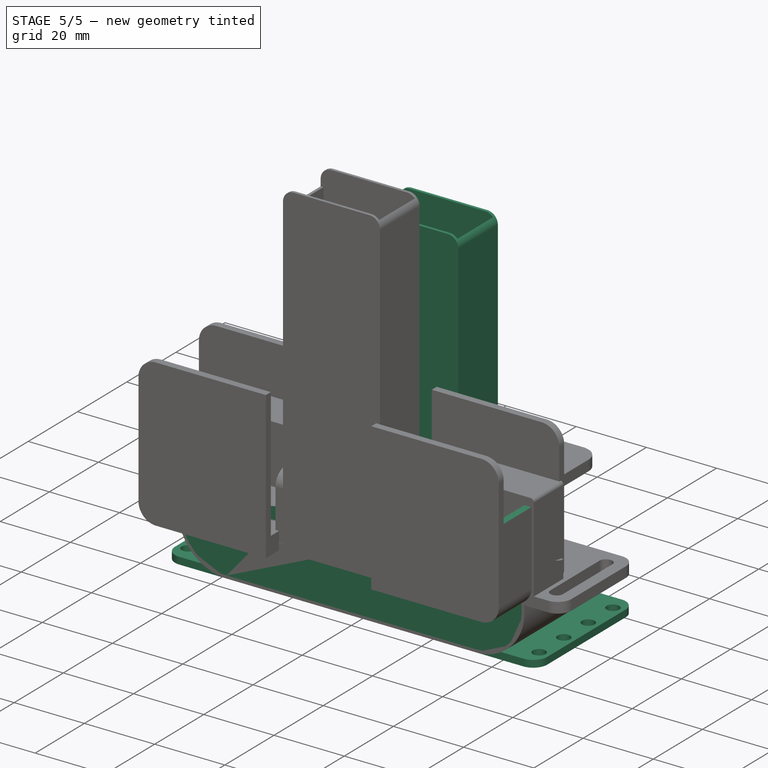
[diagram: stage 5 of 5 — iso view after this stage's code; geometry added in this stage tinted green]
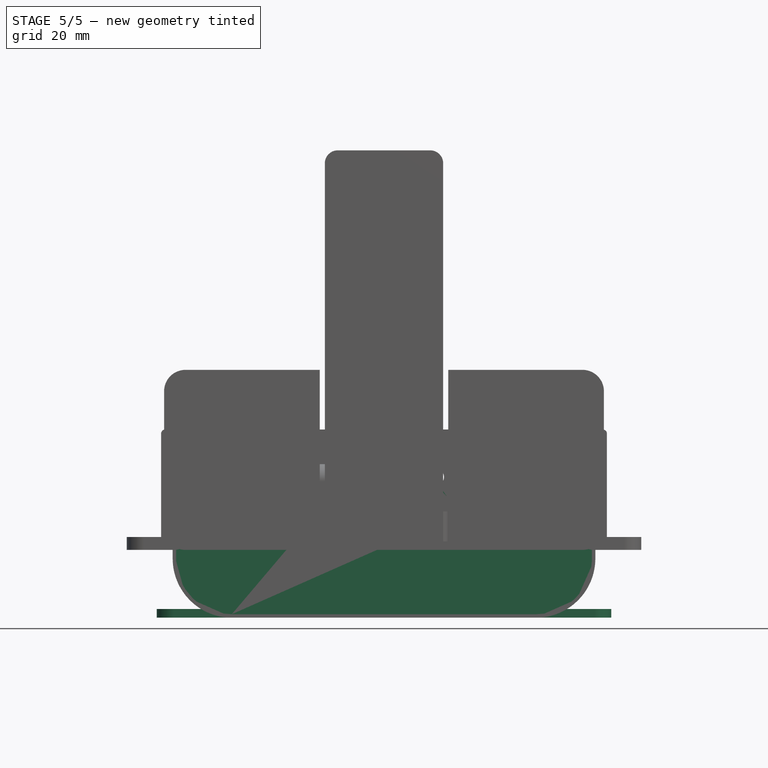
[diagram: stage 5 of 5 — front view after this stage's code; geometry added in this stage tinted green]
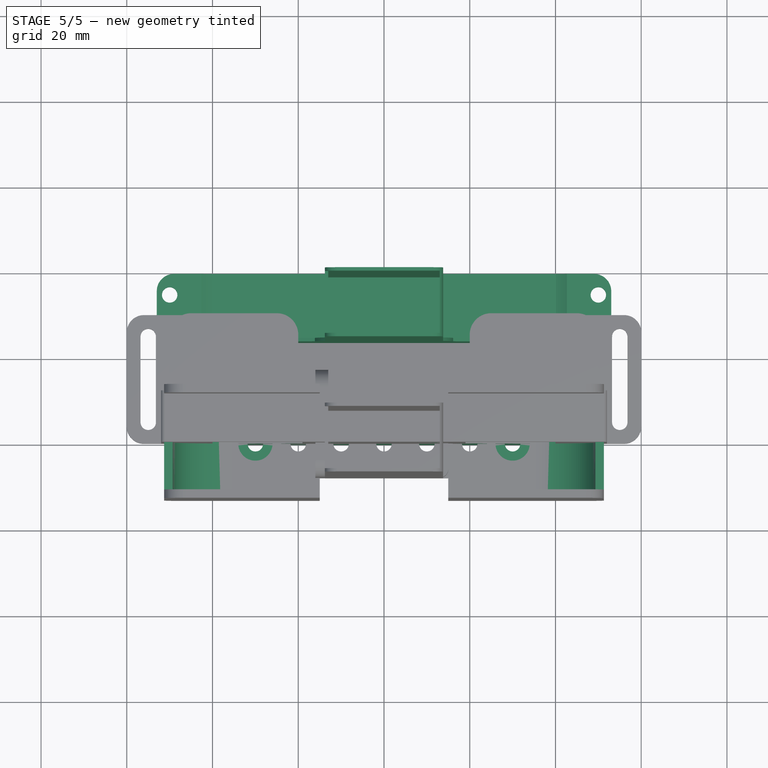
[diagram: stage 5 of 5 — top view after this stage's code; geometry added in this stage tinted green]
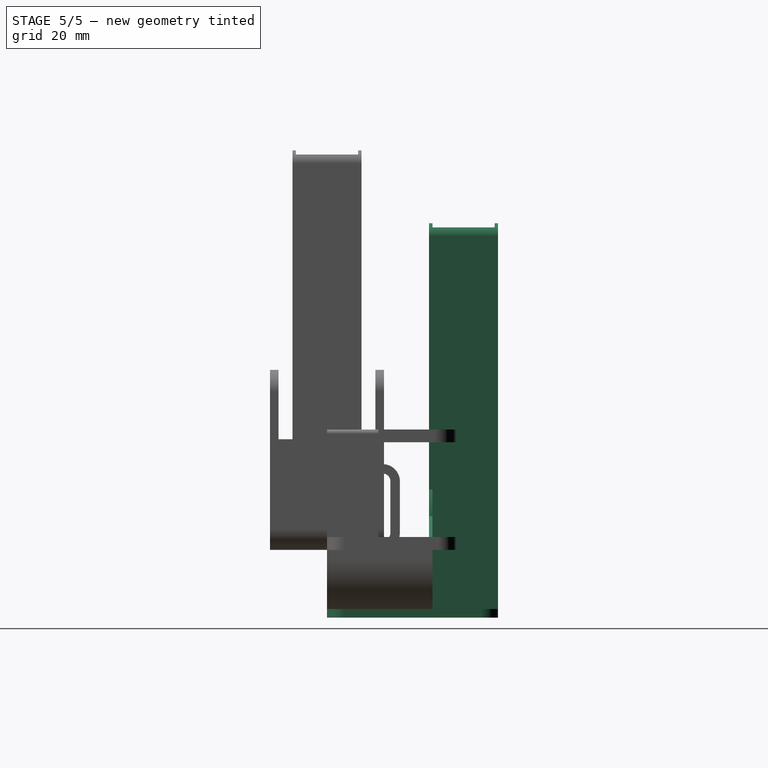
[diagram: stage 5 of 5 — right view after this stage's code; geometry added in this stage tinted green]
FEATURE [Sketcher::SketchObject] Sketch001  label="side sketch"
  FullyConstrained = false
  Placement = pos=(0,0,0) rot=(1,0,0;1.5708rad)
  expr: Constraints[11] = <<bottom sketch>>.Constraints.bottom_border_size
  expr: Constraints[3] = <<bottom sketch>>.Constraints.top_vertical_line
  expr: Constraints[8] = <<bottom sketch>>.Constraints.top_length
  sketch-geometry (8):
    g0: LineSegment StartX=-35.5 StartY=-15.8 StartZ=0 EndX=35.5 EndY=-15.8 EndZ=0
    g1: ArcOfCircle CenterX=-35.5 CenterY=-2 CenterZ=0 NormalX=0 NormalY=0 NormalZ=1 AngleXU=0 Radius=13.8 StartAngle=3.14159 EndAngle=4.71239
    g2: ArcOfCircle CenterX=35.5 CenterY=-2 CenterZ=0 NormalX=0 NormalY=0 NormalZ=1 AngleXU=0 Radius=13.8 StartAngle=4.71239 EndAngle=6.28319
    g3: LineSegment StartX=-49.3 StartY=0 StartZ=0 EndX=-49.3 EndY=-2 EndZ=0
    g4: LineSegment StartX=49.3 StartY=0 StartZ=0 EndX=49.3 EndY=-2 EndZ=0
    g5: LineSegment StartX=16.1143 StartY=7.86476 StartZ=0 EndX=49.3 EndY=0 EndZ=0
    g6: LineSegment StartX=-49.3 StartY=0 StartZ=0 EndX=-16.1143 EndY=7.86476 EndZ=0
    g7: ArcOfCircle CenterX=-1.0681e-12 CenterY=5.37686 CenterZ=0 NormalX=0 NormalY=0 NormalZ=1 AngleXU=0 Radius=16.3052 StartAngle=0.153181 EndAngle=2.98841
  constraints (17):
    c: Vertical(g3)
    c: Equal(g4,g3)
    c: PointOnObject(g3,g-1)
    c: DistanceY(g3,g3) = 2
    c: Tangent(g1,g3) = -1.5708
    c: Tangent(g1,g0) = -1.5708
    c: Tangent(g2,g0) = -1.5708
    c: Tangent(g4,g2) = 1.5708
    c: DistanceX(g3,g4) = 98.6
    c: Symmetric(g0,g0,g-2)
    c: Symmetric(g3,g4,g-2)
    c: DistanceX(g0,g0) = 71
    c: Coincident(g5,g4)
    c: Coincident(g6,g3)
    c: Symmetric(g6,g5,g-2)
    c: Coincident(g7,g6)
    c: Coincident(g7,g5)
FEATURE [Part::Extrusion] Extrude001  label="side extrude"
  Base = -> Sketch001
  Dir = (0,-1,2e-16)
  DirMode = 2
  FaceMakerClass = Part::FaceMakerBullseye
  LengthFwd = 0.8
  LengthRev = 0
  Reversed = true
  Solid = true
  Symmetric = false
FEATURE [Part::Mirroring] Part__Mirroring  label="side extrude (Mirror #1)"
  Base = (0,12.3,0)
  Normal = (0,1,0)
  Source = -> Extrude001
  expr: .Base.y = <<bottom extrude>>.LengthFwd / 2
FEATURE [Part::MultiFuse] Fusion  label="wintel holder fusion"
  Shapes = -> [Extrude,Part__Mirroring,Extrude001]
FEATURE [Sketcher::SketchObject] Sketch002  label="usb side sketch"
  FullyConstrained = true
  Placement = pos=(0,24.6,0) rot=(1,0,0;1.5708rad)
  expr: .Placement.Base.y = <<bottom extrude>>.LengthFwd
  expr: Constraints[11] = <<bottom sketch>>.Constraints.bottom_border_size
  expr: Constraints[3] = <<bottom sketch>>.Constraints.top_vertical_line
  expr: Constraints[8] = <<bottom sketch>>.Constraints.top_length
  sketch-geometry (6):
    g0: LineSegment StartX=-35.5 StartY=-15.8 StartZ=0 EndX=35.5 EndY=-15.8 EndZ=0
    g1: ArcOfCircle CenterX=-35.5 CenterY=-2 CenterZ=0 NormalX=0 NormalY=0 NormalZ=1 AngleXU=0 Radius=13.8 StartAngle=3.14159 EndAngle=4.71239
    g2: ArcOfCircle CenterX=35.5 CenterY=-2 CenterZ=0 NormalX=0 NormalY=0 NormalZ=1 AngleXU=0 Radius=13.8 StartAngle=4.71239 EndAngle=6.28319
    g3: LineSegment StartX=-49.3 StartY=-7.5e-13 StartZ=0 EndX=-49.3 EndY=-2 EndZ=0
    g4: LineSegment StartX=49.3 StartY=-5.96614e-09 StartZ=0 EndX=49.3 EndY=-2 EndZ=0
    g5: LineSegment StartX=-49.3 StartY=-7.5e-13 StartZ=0 EndX=49.3 EndY=-5.96614e-09 EndZ=0
  constraints (14):
    c: Vertical(g3)
    c: Equal(g4,g3)
    c: PointOnObject(g3,g-1)
    c: DistanceY(g3,g3) = 2
    c: Tangent(g1,g3) = -1.5708
    c: Tangent(g1,g0) = -1.5708
    c: Tangent(g2,g0) = -1.5708
    c: Tangent(g4,g2) = 1.5708
    c: DistanceX(g3,g4) = 98.6
    c: Symmetric(g0,g0,g-2)
    c: Symmetric(g3,g4,g-2)
    c: DistanceX(g0,g0) = 71
    c: Coincident(g5,g4)
    c: Coincident(g5,g3)
FEATURE [Part::Extrusion] Extrude002  label="usb extrude"
  Base = -> Sketch002
  Dir = (0,-1,2e-16)
  DirMode = 2
  FaceMakerClass = Part::FaceMakerBullseye
  LengthFwd = 0.8
  LengthRev = 0
  Solid = true
  Symmetric = false
FEATURE [Part::Box] Box001  label="bottom cube"
  AttacherType = Attacher::AttachEngine3D
  Height = 2
  Length = 106
  Placement = pos=(-53,0,-15.8) rot=(0,0,1;0rad)
  Width = 39.9
  expr: .Placement.Base.x = -Length / 2
  expr: .Placement.Base.z = -<<bottom sketch>>.Constraints.below_center
  expr: Width = <<bottom extrude>>.LengthFwd + <<usb outer cube>>.Width - <<bottom sketch>>.Constraints.wall
FEATURE [Part::Fillet] Fillet  label="bottom cube fillet"
  Base = -> Box001
  Edges = 4 edges r=4: [Edge1,Edge3,Edge5,Edge7]
FEATURE [Part::Cylinder] Cylinder  label="bolt hole"
  Angle = 360
  AttacherType = Attacher::AttachEngine3D
  FirstAngle = 0
  Height = 10
  Placement = pos=(-50,5,-17) rot=(0,0,1;0rad)
  Radius = 1.8
  SecondAngle = 0
  expr: .Placement.Base.x = 3mm - <<bottom cube>>.Length / 2
  expr: .Placement.Base.z = <<bottom cube>>.Placement.Base.z
FEATURE [Part::FeaturePython] Array001  label="bolt hole array"  # Draft array (typed FeaturePython)
  AlwaysSyncPlacement = false
  Angle = 360
  ArrayType = 0
  Axis = (0,0,1)
  Base = -> Cylinder
  Center = (0,0,0)
  Count = 8
  ExpandArray = false
  Fuse = false
  IntervalAxis = (0,0,0)
  IntervalX = (100,0,0)
  IntervalY = (0,10,0)
  IntervalZ = (0,0,100)
  NumberCircles = 3
  NumberPolar = 5
  NumberX = 2
  NumberY = 4
  NumberZ = 1
  PlacementList = 8 placements: [(-50,5,-17),(-50,15,-17),(-50,25,-17),(-50,35,-17),(50,5,-17),(50,15,-17),(50,25,-17),(50,35,-17)]
  RadialDistance = 50
  ScaleList = (8) [(1,1,1),(1,1,1),(1,1,1),(1,1,1),(1,1,1),(1,1,1),(1,1,1),(1,1,1)]
  Symmetry = 1
  TangentialDistance = 25
FEATURE [Part::Extrusion] Extrude003  label="side sketch removal extrude"
  Base = -> Sketch001
  Dir = (0,-1,2e-16)
  DirMode = 2
  FaceMakerClass = Part::FaceMakerBullseye
  LengthFwd = 100
  LengthRev = 0
  Reversed = true
  Solid = true
  Symmetric = true
FEATURE [Part::Cut] Cut001  label="bottom holed cube cut"
  Base = -> Fillet
  Tool = -> Extrude003
FEATURE [Part::Box] Box005  label="bottom wall cube"
  AttacherType = Attacher::AttachEngine3D
  Height = 0.8
  Length = 86
  Placement = pos=(-43,0,-15.8) rot=(0,0,1;0rad)
  Width = 39.9
  expr: .Placement.Base.x = -Length / 2
  expr: .Placement.Base.z = <<bottom cube>>.Placement.Base.z
  expr: Height = <<bottom sketch>>.Constraints.wall
  expr: Length = <<bottom cube>>.Length - 20mm
  expr: Width = <<bottom cube>>.Width
FEATURE [Part::MultiFuse] Fusion002  label="bottom wall fusion"
  Shapes = -> [Cut001,Box005]
FEATURE [Part::Cut] Cut  label="bottom cube bolt hole cut"
  Base = -> Fusion002
  Tool = -> Array001
FEATURE [Part::Compound] Compound001  label="bottom cube bolt hole compound"
  Links = -> [Cut]
FEATURE [Part::Compound] Compound002  label="wintel holder compound"
  Links = -> [Fusion]
FEATURE [Spreadsheet::Sheet] Spreadsheet  label="p"
  cells = A1=wintel_length; B1(wintel_length)==98.59999999999999mm; A2=wintel_width; B2(wintel_width)==22.6mm; A3=wintel_height; B3(wintel_height)==98.59999999999999mm; A4=wall; B4(wall)==2mm; A5=thick_wall; B5(thick_wall)==3mm; A6=wintel_holder_height; B6(wintel_holder_height)==40mm; A7=bolt_head_height; B7(bolt_head_height)==3mm; A8=side_extract_offset_height; B8(side_extract_offset_height)==5mm; A9=corner_length; B9(corner_length)==10mm; A10=m3_r; B10(m3_r)==1.8mm
FEATURE [Part::Box] Box006  label="wintel box cube"
  AttacherType = Attacher::AttachEngine3D
  Height = 98.6
  Length = 98.6
  Placement = pos=(-49.3,-11.3,0) rot=(0,0,1;0rad)
  Width = 22.6
  expr: .Placement.Base.x = -Length / 2
  expr: .Placement.Base.y = -Width / 2
  expr: Height = <<p>>.wintel_height
  expr: Length = <<p>>.wintel_length
  expr: Width = <<p>>.wintel_width
FEATURE [Part::MultiFuse] Fusion004  label="wintel extract fusion"
  Placement = pos=(0,0,20.8) rot=(0,0,1;0rad)
  Shapes = -> [Box006,Extrude004,Box008,Array,Box009]
  expr: .Placement.Base.z = <<bottom under sketch>>.Constraints.below_center + <<p>>.wall + <<p>>.bolt_head_height
FEATURE [Part::Cut] Cut003  label="wintel holder cut"
  Base = -> Fillet002
  Tool = -> Fusion004
FEATURE [PartDesign::Body] Body  label="usb holder compound clone"
  BaseFeature = -> Compound
  Group = -> [Clone]
  Origin = -> Origin
  Placement = pos=(0,31.85,-15.8) rot=(0,0,1;0rad)
  Tip = -> Clone
  expr: .Placement.Base.y = <<bottom extrude>>.LengthFwd + <<usb outer cube>>.Width / 2 - <<bottom sketch>>.Constraints.wall
  expr: .Placement.Base.z = -<<bottom sketch>>.Constraints.below_center
FEATURE [Part::MultiFuse] Fusion003  label="wintel compound fusion"
  Shapes = -> [Compound001,Compound002,Body]
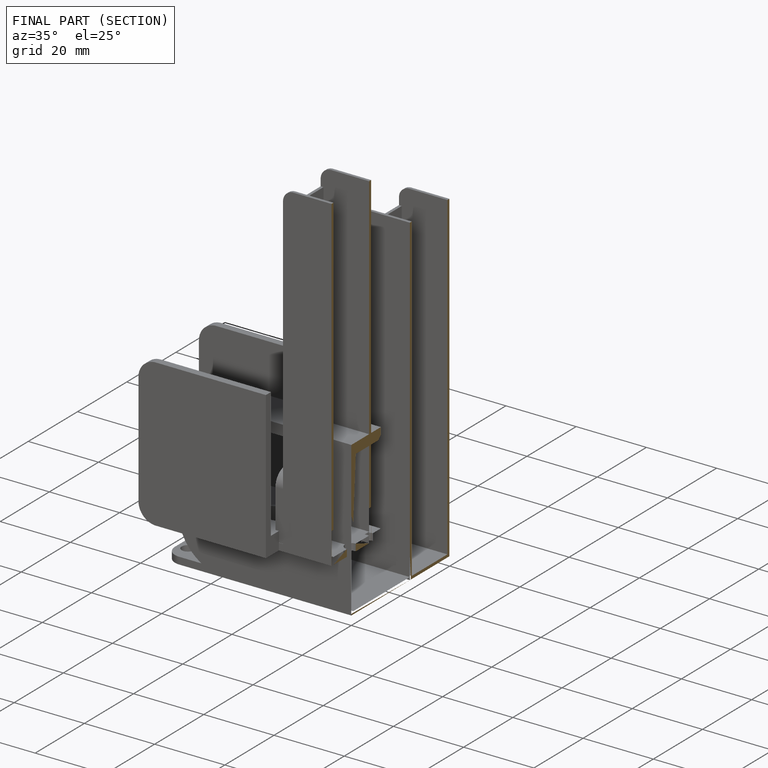
[diagram: finished part — half-section view (interior)]
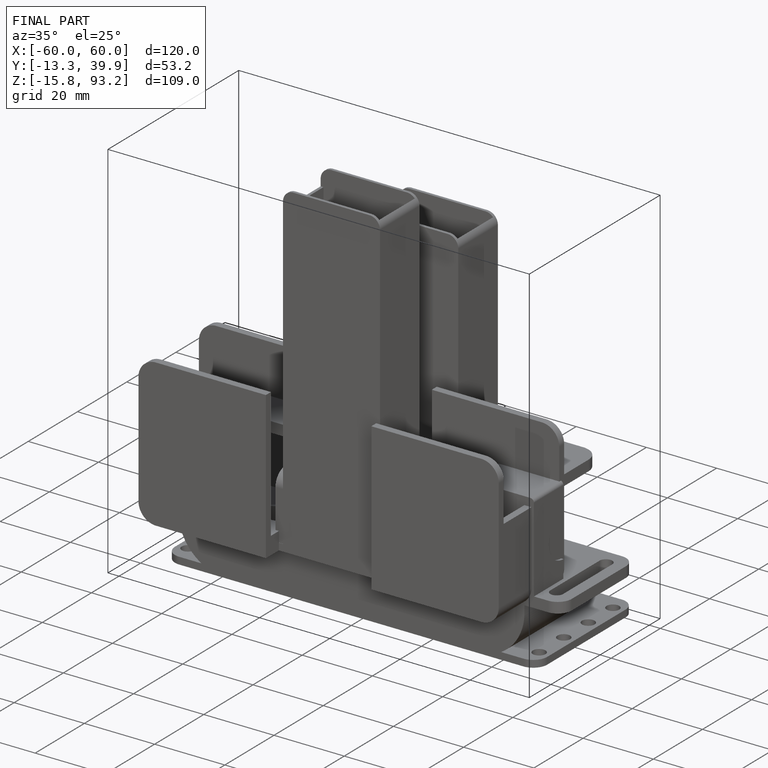
[diagram: finished part — iso view with bounding-box wireframe]
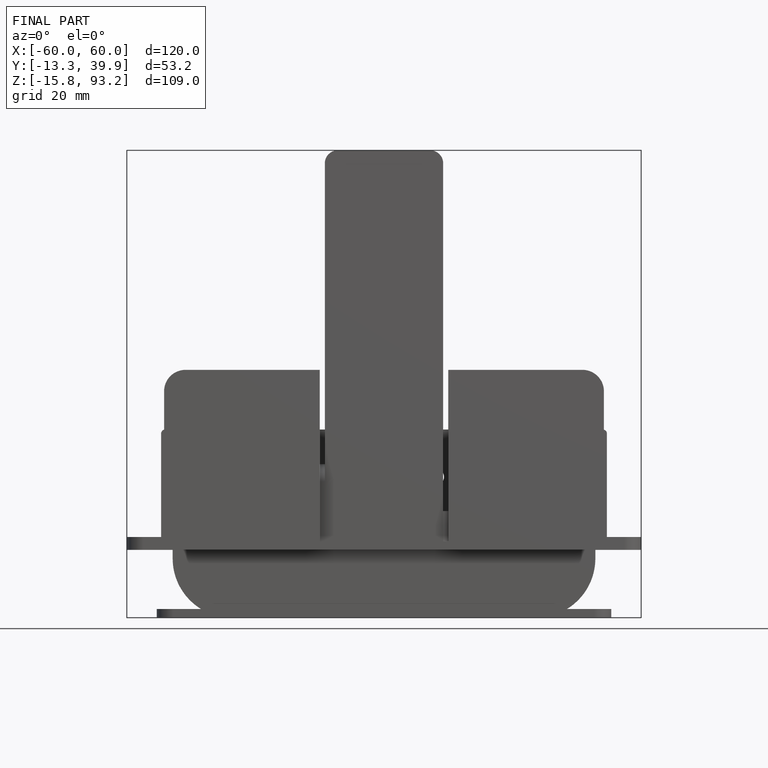
[diagram: finished part — front view with bounding-box wireframe]
